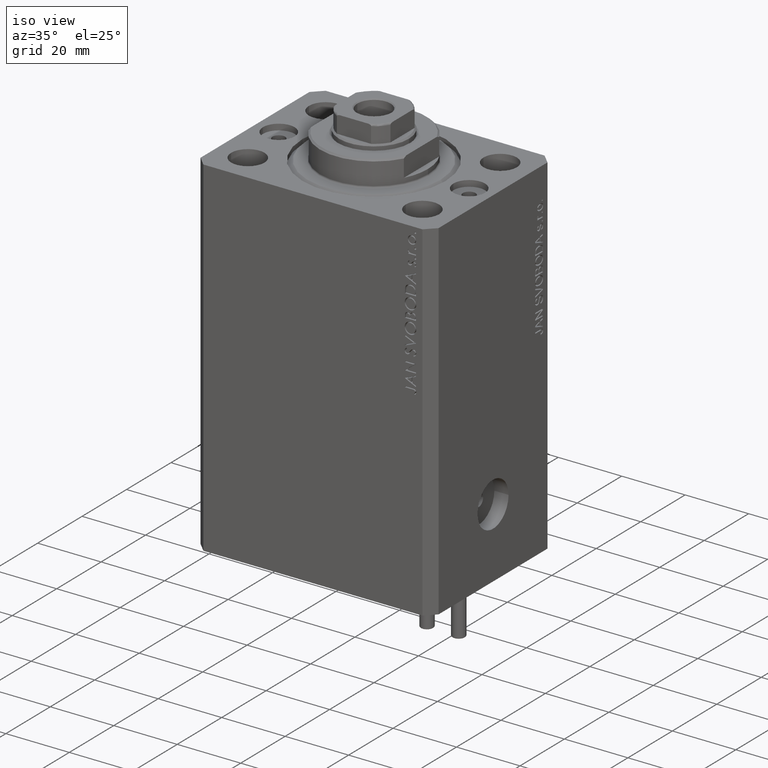
[diagram: clean part render]
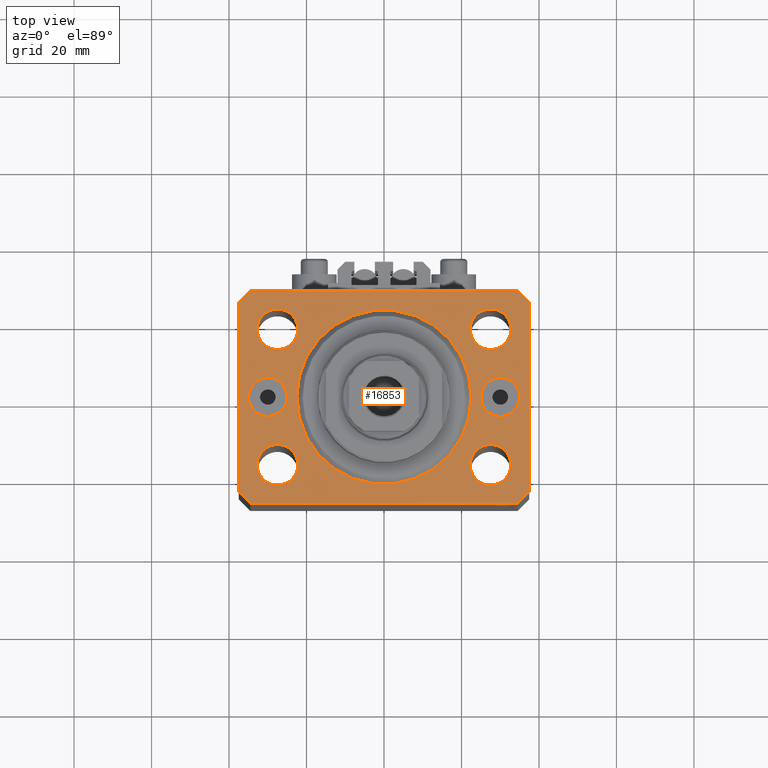
[diagram: tour spotlight — one face highlighted and labeled with its STEP entity id]
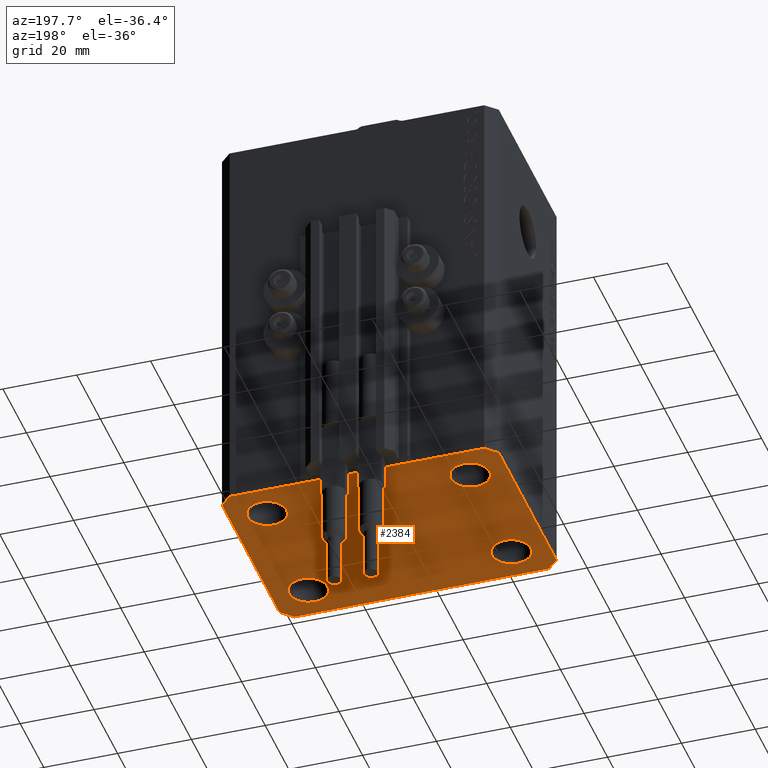
[diagram: tour spotlight — one face highlighted and labeled with its STEP entity id]
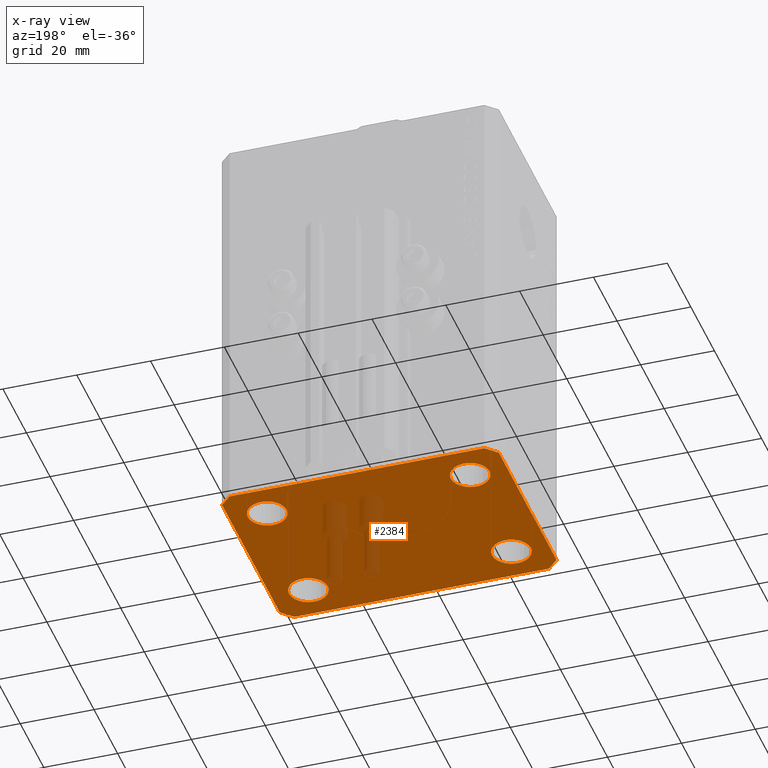
[diagram: x-ray of the same camera — body ghosted, this tour face saturated]
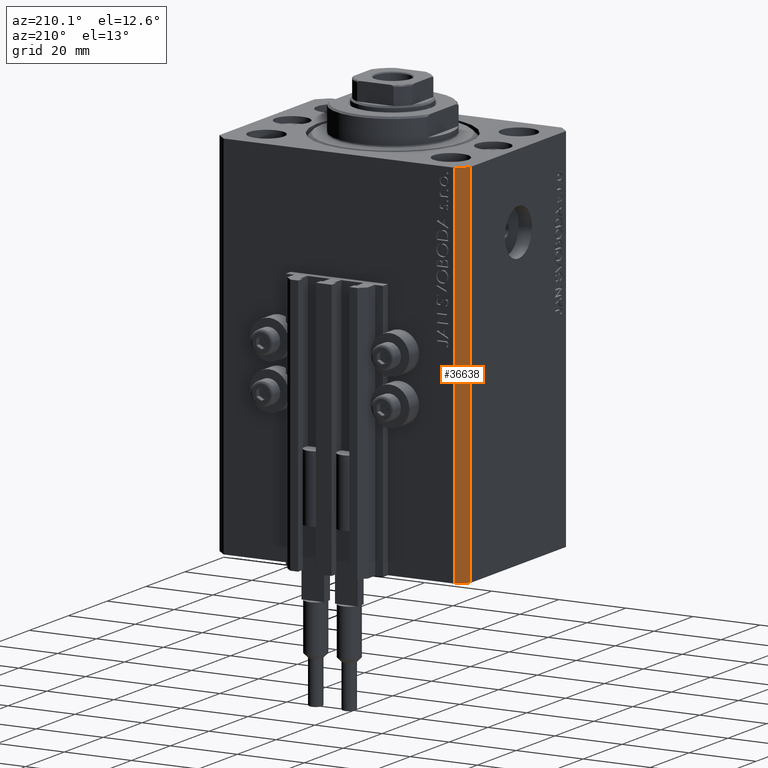
[diagram: tour spotlight — one face highlighted and labeled with its STEP entity id]
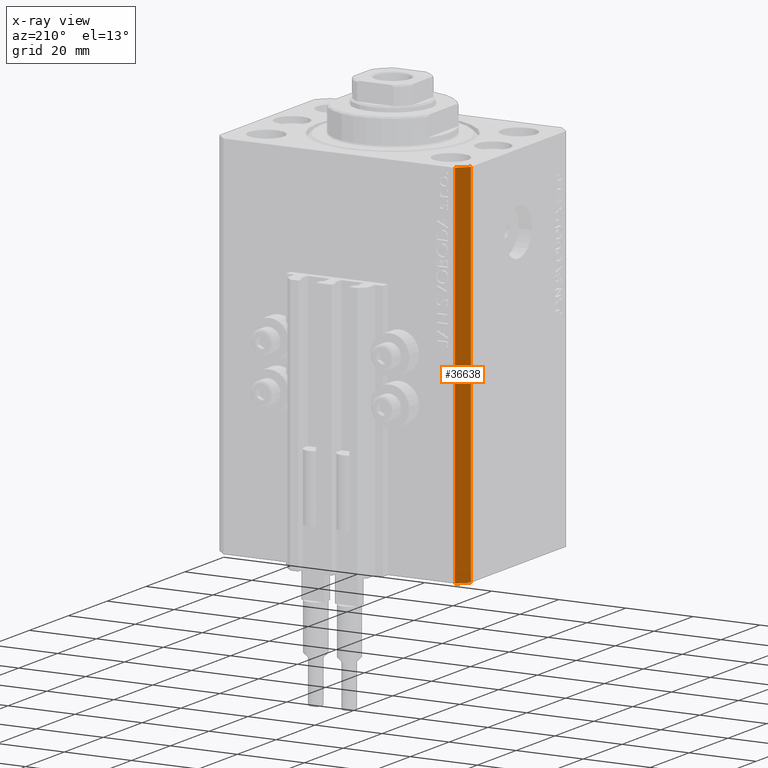
[diagram: x-ray of the same camera — body ghosted, this tour face saturated]
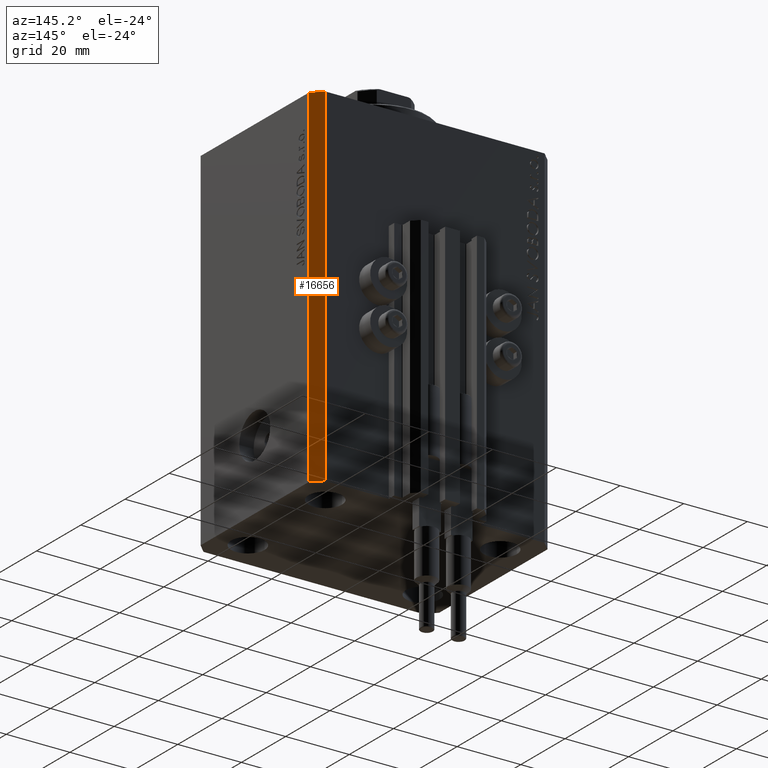
[diagram: tour spotlight — one face highlighted and labeled with its STEP entity id]
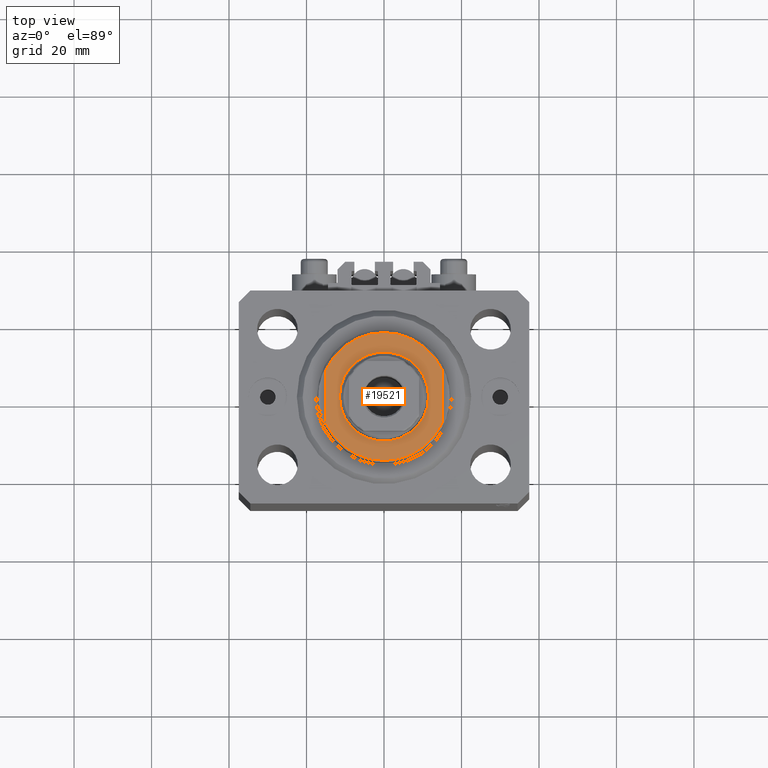
[diagram: tour spotlight — one face highlighted and labeled with its STEP entity id]
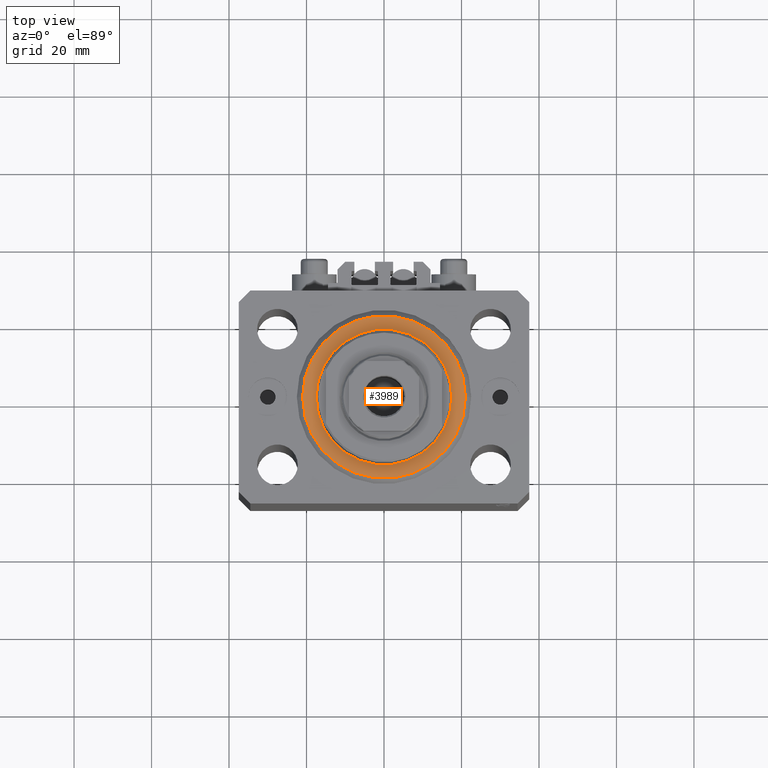
[diagram: tour spotlight — one face highlighted and labeled with its STEP entity id]
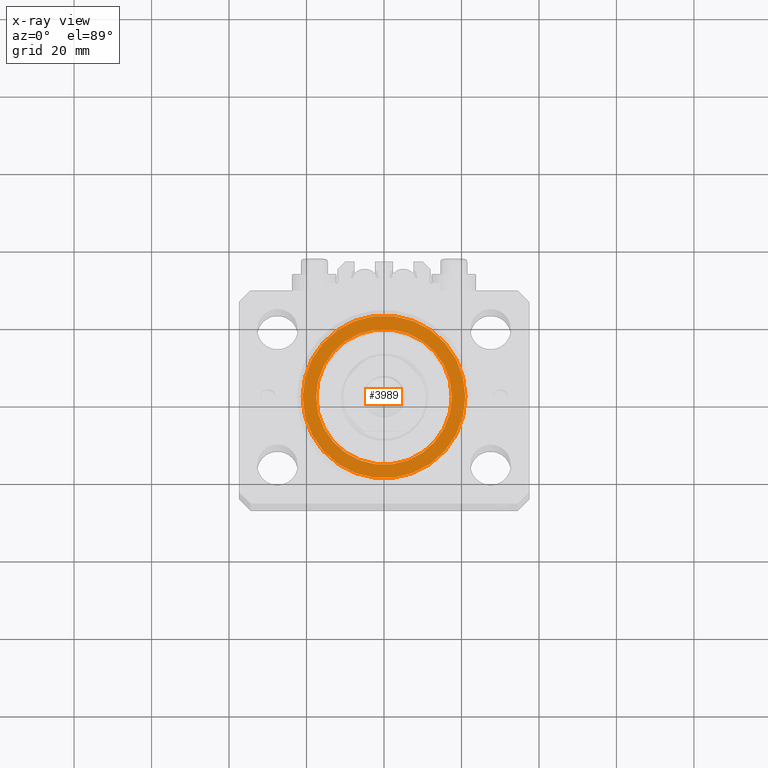
[diagram: x-ray of the same camera — body ghosted, this tour face saturated]
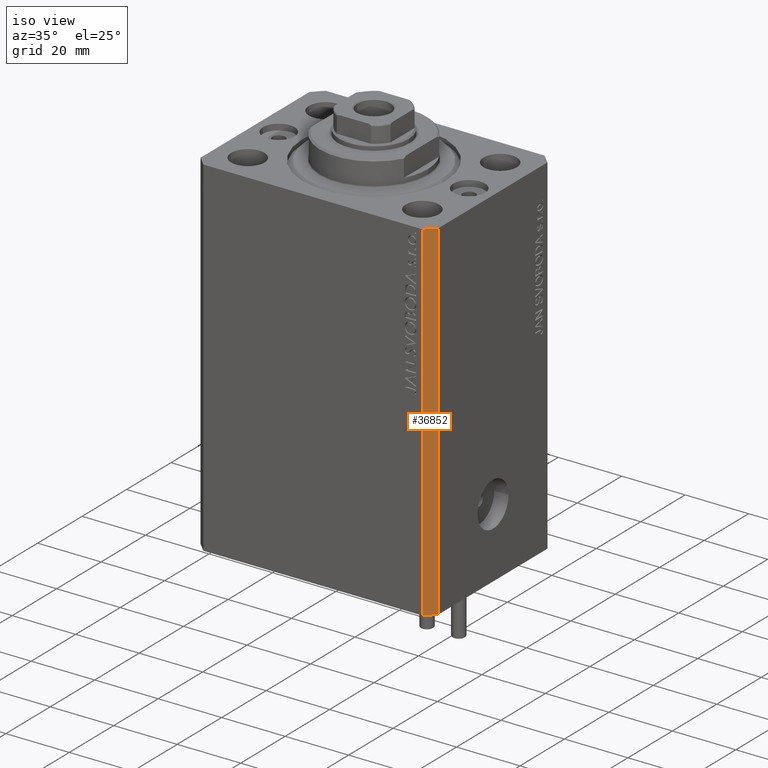
[diagram: tour spotlight — one face highlighted and labeled with its STEP entity id]
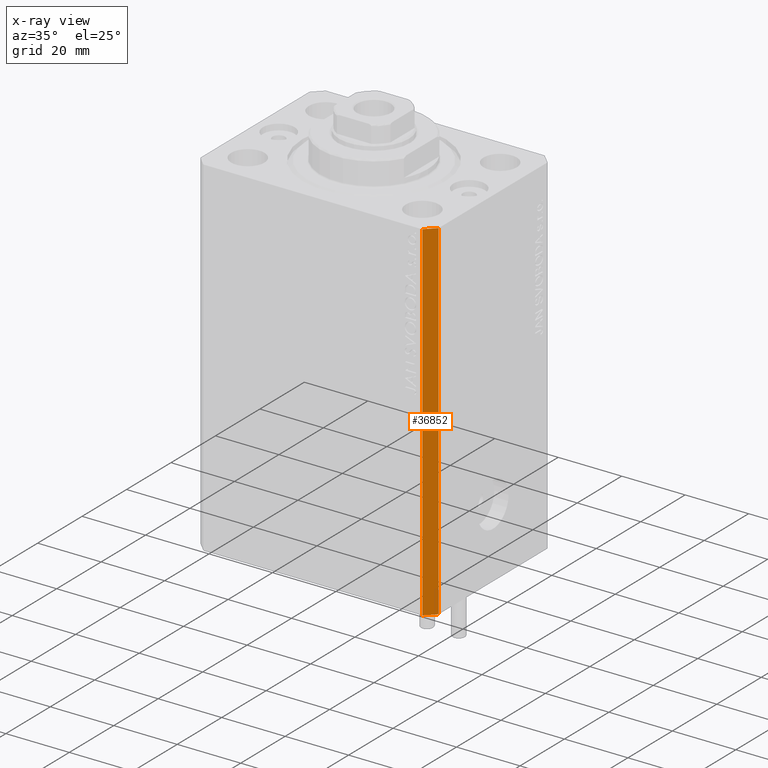
[diagram: x-ray of the same camera — body ghosted, this tour face saturated]
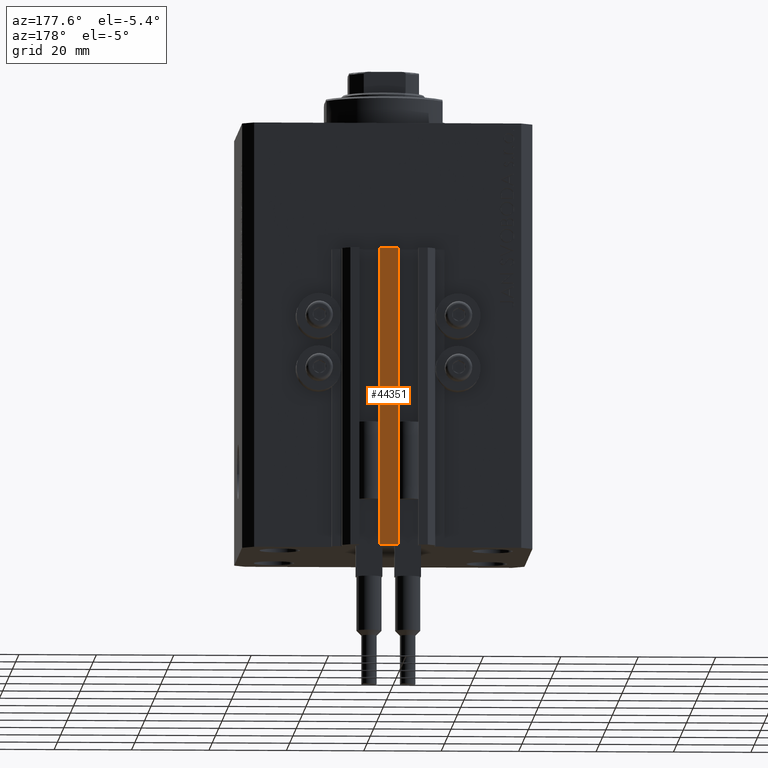
[diagram: tour spotlight — one face highlighted and labeled with its STEP entity id]
A machine part: a face-by-face anatomy tour. The part has 1086 B-rep faces; the first image is the clean iso view, then the 8 largest visible faces are spotlighted one at a time (largest first), each with its STEP entity span.

Face 1 — top view, entity #16853. In plain terms, the highlighted planar face has unit normal (0, 0, 1).
Definition (entity closure, byte-faithful):
#76 = ORIENTED_EDGE ( 'NONE', *, *, #33664, .F. ) ;
#264 = DIRECTION ( 'NONE',  ( 1.000000000000000000, 0.000000000000000000, 0.000000000000000000 ) ) ;
#388 = CIRCLE ( 'NONE', #23613, 4.999999999999997335 ) ;
#689 = CARTESIAN_POINT ( 'NONE',  ( -34.49999999999998579, -27.49999999999999645, 0.000000000000000000 ) ) ;
#713 = VERTEX_POINT ( 'NONE', #28373 ) ;
#946 = LINE ( 'NONE', #41523, #21333 ) ;
#1895 = ORIENTED_EDGE ( 'NONE', *, *, #6764, .T. ) ;
#2442 = EDGE_CURVE ( 'NONE', #27862, #30757, #22377, .T. ) ;
#2640 = ORIENTED_EDGE ( 'NONE', *, *, #14401, .F. ) ;
#2778 = ORIENTED_EDGE ( 'NONE', *, *, #31195, .F. ) ;
#3009 = FACE_BOUND ( 'NONE', #36165, .T. ) ;
#3060 = ORIENTED_EDGE ( 'NONE', *, *, #40487, .T. ) ;
#3322 = CARTESIAN_POINT ( 'NONE',  ( -37.49999999999999289, 24.50000000000000000, 0.000000000000000000 ) ) ;
#3692 = DIRECTION ( 'NONE',  ( 0.000000000000000000, 0.000000000000000000, 1.000000000000000000 ) ) ;
#3810 = CARTESIAN_POINT ( 'NONE',  ( 22.25000000000000000, 17.49999999999999289, 0.000000000000000000 ) ) ;
#4398 = CARTESIAN_POINT ( 'NONE',  ( 27.49999999999999289, -17.50000000000000000, 0.000000000000000000 ) ) ;
#4461 = EDGE_CURVE ( 'NONE', #30757, #27862, #44316, .T. ) ;
#4526 = EDGE_CURVE ( 'NONE', #33407, #7803, #43533, .T. ) ;
#4677 = CARTESIAN_POINT ( 'NONE',  ( -30.00000000000000000, 0.000000000000000000, 0.000000000000000000 ) ) ;
#4940 = CARTESIAN_POINT ( 'NONE',  ( -34.49999999999999289, 27.50000000000000000, 0.000000000000000000 ) ) ;
#5065 = ORIENTED_EDGE ( 'NONE', *, *, #14376, .T. ) ;
#5098 = LINE ( 'NONE', #42259, #26487 ) ;
#5328 = DIRECTION ( 'NONE',  ( -0.7071067811865364705, 0.7071067811865584529, 0.000000000000000000 ) ) ;
#5501 = CARTESIAN_POINT ( 'NONE',  ( -32.75000000000000000, 17.49999999999999645, 0.000000000000000000 ) ) ;
#5679 = CIRCLE ( 'NONE', #24275, 5.250000000000000888 ) ;
#6258 = EDGE_LOOP ( 'NONE', ( #76, #23099 ) ) ;
#6282 = AXIS2_PLACEMENT_3D ( 'NONE', #19047, #12260, #41877 ) ;
#6323 = EDGE_CURVE ( 'NONE', #15936, #7687, #37932, .T. ) ;
#6650 = FACE_BOUND ( 'NONE', #6258, .T. ) ;
#6764 = EDGE_CURVE ( 'NONE', #713, #41198, #5098, .T. ) ;
#7135 = FACE_BOUND ( 'NONE', #18099, .T. ) ;
#7162 = CARTESIAN_POINT ( 'NONE',  ( -27.49999999999999289, -17.50000000000000000, 0.000000000000000000 ) ) ;
#7292 = ORIENTED_EDGE ( 'NONE', *, *, #18149, .F. ) ;
#7334 = CARTESIAN_POINT ( 'NONE',  ( -24.99999999999999645, 0.000000000000000000, 0.000000000000000000 ) ) ;
#7376 = PLANE ( 'NONE',  #47857 ) ;
#7407 = VERTEX_POINT ( 'NONE', #18950 ) ;
#7571 = CIRCLE ( 'NONE', #34686, 4.999999999999997335 ) ;
#7687 = VERTEX_POINT ( 'NONE', #689 ) ;
#7803 = VERTEX_POINT ( 'NONE', #46077 ) ;
#8189 = AXIS2_PLACEMENT_3D ( 'NONE', #30100, #44941, #20095 ) ;
#8235 = CARTESIAN_POINT ( 'NONE',  ( 0.000000000000000000, 0.000000000000000000, 0.000000000000000000 ) ) ;
#8307 = ORIENTED_EDGE ( 'NONE', *, *, #4526, .F. ) ;
#8416 = VERTEX_POINT ( 'NONE', #44914 ) ;
#8877 = VERTEX_POINT ( 'NONE', #3810 ) ;
#9136 = DIRECTION ( 'NONE',  ( 1.000000000000000000, 0.000000000000000000, 0.000000000000000000 ) ) ;
#9391 = DIRECTION ( 'NONE',  ( 0.000000000000000000, 0.000000000000000000, 1.000000000000000000 ) ) ;
#9645 = ORIENTED_EDGE ( 'NONE', *, *, #30000, .T. ) ;
#9868 = EDGE_CURVE ( 'NONE', #15249, #7407, #39043, .T. ) ;
#10096 = CARTESIAN_POINT ( 'NONE',  ( 34.49999999999999289, -27.49999999999999645, 0.000000000000000000 ) ) ;
#10170 = CIRCLE ( 'NONE', #37307, 5.000000000000000888 ) ;
#10409 = CARTESIAN_POINT ( 'NONE',  ( 34.49999999999999289, -27.49999999999999645, 0.000000000000000000 ) ) ;
#10817 = CARTESIAN_POINT ( 'NONE',  ( -22.25000000000000000, 17.49999999999999645, 0.000000000000000000 ) ) ;
#11064 = EDGE_CURVE ( 'NONE', #19434, #713, #24807, .T. ) ;
#11667 = CARTESIAN_POINT ( 'NONE',  ( -22.24999999999999289, -17.50000000000000000, 0.000000000000000000 ) ) ;
#12260 = DIRECTION ( 'NONE',  ( 0.000000000000000000, 0.000000000000000000, 1.000000000000000000 ) ) ;
#13509 = DIRECTION ( 'NONE',  ( 0.000000000000000000, 0.000000000000000000, 1.000000000000000000 ) ) ;
#13717 = CARTESIAN_POINT ( 'NONE',  ( 30.00000000000000000, 0.000000000000000000, 0.000000000000000000 ) ) ;
#13839 = EDGE_LOOP ( 'NONE', ( #2640, #32826 ) ) ;
#13849 = CARTESIAN_POINT ( 'NONE',  ( 37.49999999999999289, -24.50000000000000000, 0.000000000000000000 ) ) ;
#14295 = DIRECTION ( 'NONE',  ( 1.000000000000000000, 0.000000000000000000, 0.000000000000000000 ) ) ;
#14376 = EDGE_CURVE ( 'NONE', #46586, #15936, #946, .T. ) ;
#14401 = EDGE_CURVE ( 'NONE', #35529, #39481, #37649, .T. ) ;
#14805 = LINE ( 'NONE', #45148, #42304 ) ;
#15249 = VERTEX_POINT ( 'NONE', #11667 ) ;
#15526 = ORIENTED_EDGE ( 'NONE', *, *, #9868, .F. ) ;
#15762 = DIRECTION ( 'NONE',  ( 0.000000000000000000, -1.000000000000000000, 0.000000000000000000 ) ) ;
#15887 = ORIENTED_EDGE ( 'NONE', *, *, #11064, .T. ) ;
#15904 = CARTESIAN_POINT ( 'NONE',  ( -34.99999999999999289, 6.123233995736768255E-16, 0.000000000000000000 ) ) ;
#15936 = VERTEX_POINT ( 'NONE', #23632 ) ;
#16367 = FACE_OUTER_BOUND ( 'NONE', #30552, .T. ) ;
#16546 = DIRECTION ( 'NONE',  ( 1.000000000000000000, 0.000000000000000000, 0.000000000000000000 ) ) ;
#16761 = ORIENTED_EDGE ( 'NONE', *, *, #6323, .T. ) ;
#16853 = ADVANCED_FACE ( 'NONE', ( #16367, #43329, #6650, #28493, #40647, #7135, #46964, #3009 ), #7376, .T. ) ;
#17294 = AXIS2_PLACEMENT_3D ( 'NONE', #7162, #39696, #43853 ) ;
#17380 = CARTESIAN_POINT ( 'NONE',  ( 27.50000000000000000, 17.49999999999999289, 0.000000000000000000 ) ) ;
#17632 = ORIENTED_EDGE ( 'NONE', *, *, #4461, .F. ) ;
#17931 = VECTOR ( 'NONE', #28844, 1000.000000000000114 ) ;
#18021 = AXIS2_PLACEMENT_3D ( 'NONE', #8235, #20312, #34193 ) ;
#18082 = ORIENTED_EDGE ( 'NONE', *, *, #47538, .T. ) ;
#18099 = EDGE_LOOP ( 'NONE', ( #2778, #8307 ) ) ;
#18149 = EDGE_CURVE ( 'NONE', #20576, #19166, #22053, .T. ) ;
#18394 = DIRECTION ( 'NONE',  ( 0.000000000000000000, 0.000000000000000000, 1.000000000000000000 ) ) ;
#18926 = EDGE_LOOP ( 'NONE', ( #17632, #39416 ) ) ;
#18950 = CARTESIAN_POINT ( 'NONE',  ( -32.74999999999999289, -17.50000000000000000, 0.000000000000000000 ) ) ;
#19047 = CARTESIAN_POINT ( 'NONE',  ( 0.000000000000000000, 0.000000000000000000, 0.000000000000000000 ) ) ;
#19166 = VERTEX_POINT ( 'NONE', #7334 ) ;
#19434 = VERTEX_POINT ( 'NONE', #13849 ) ;
#19463 = DIRECTION ( 'NONE',  ( 0.000000000000000000, 0.000000000000000000, 1.000000000000000000 ) ) ;
#19683 = ORIENTED_EDGE ( 'NONE', *, *, #22805, .F. ) ;
#20095 = DIRECTION ( 'NONE',  ( 1.000000000000000000, 0.000000000000000000, 0.000000000000000000 ) ) ;
#20312 = DIRECTION ( 'NONE',  ( 0.000000000000000000, 0.000000000000000000, 1.000000000000000000 ) ) ;
#20576 = VERTEX_POINT ( 'NONE', #15904 ) ;
#21333 = VECTOR ( 'NONE', #15762, 1000.000000000000000 ) ;
#21655 = DIRECTION ( 'NONE',  ( 1.076236605503979380E-14, 1.000000000000000000, 0.000000000000000000 ) ) ;
#21679 = DIRECTION ( 'NONE',  ( 0.000000000000000000, 0.000000000000000000, 1.000000000000000000 ) ) ;
#21901 = AXIS2_PLACEMENT_3D ( 'NONE', #17380, #32192, #47025 ) ;
#22053 = CIRCLE ( 'NONE', #41442, 5.000000000000000888 ) ;
#22169 = DIRECTION ( 'NONE',  ( 1.000000000000000000, 0.000000000000000000, -0.000000000000000000 ) ) ;
#22377 = CIRCLE ( 'NONE', #38640, 5.250000000000000888 ) ;
#22805 = EDGE_CURVE ( 'NONE', #19166, #20576, #10170, .T. ) ;
#23099 = ORIENTED_EDGE ( 'NONE', *, *, #27097, .F. ) ;
#23341 = CARTESIAN_POINT ( 'NONE',  ( -37.49999999999999289, -24.50000000000000000, 0.000000000000000000 ) ) ;
#23489 = CARTESIAN_POINT ( 'NONE',  ( -34.49999999999999289, 27.50000000000000000, 0.000000000000000000 ) ) ;
#23608 = EDGE_CURVE ( 'NONE', #23843, #19434, #48038, .T. ) ;
#23613 = AXIS2_PLACEMENT_3D ( 'NONE', #23657, #45558, #34835 ) ;
#23632 = CARTESIAN_POINT ( 'NONE',  ( -37.49999999999999289, -24.50000000000000000, 0.000000000000000000 ) ) ;
#23657 = CARTESIAN_POINT ( 'NONE',  ( 30.00000000000000000, 0.000000000000000000, 0.000000000000000000 ) ) ;
#23843 = VERTEX_POINT ( 'NONE', #10096 ) ;
#23855 = EDGE_LOOP ( 'NONE', ( #19683, #7292 ) ) ;
#24275 = AXIS2_PLACEMENT_3D ( 'NONE', #35182, #24723, #46843 ) ;
#24674 = DIRECTION ( 'NONE',  ( 1.000000000000000000, 0.000000000000000000, 0.000000000000000000 ) ) ;
#24723 = DIRECTION ( 'NONE',  ( 0.000000000000000000, 0.000000000000000000, 1.000000000000000000 ) ) ;
#24807 = LINE ( 'NONE', #36000, #35955 ) ;
#25428 = DIRECTION ( 'NONE',  ( 1.000000000000000000, 0.000000000000000000, 0.000000000000000000 ) ) ;
#26419 = DIRECTION ( 'NONE',  ( -1.000000000000000000, 0.000000000000000000, 0.000000000000000000 ) ) ;
#26487 = VECTOR ( 'NONE', #5328, 1000.000000000000114 ) ;
#27097 = EDGE_CURVE ( 'NONE', #8877, #46097, #36658, .T. ) ;
#27224 = DIRECTION ( 'NONE',  ( 0.7071067811865483499, -0.7071067811865466846, 0.000000000000000000 ) ) ;
#27612 = LINE ( 'NONE', #23489, #39730 ) ;
#27647 = EDGE_CURVE ( 'NONE', #39481, #35529, #5679, .T. ) ;
#27862 = VERTEX_POINT ( 'NONE', #42634 ) ;
#28353 = LINE ( 'NONE', #43187, #42122 ) ;
#28373 = CARTESIAN_POINT ( 'NONE',  ( 37.50000000000051870, 24.49999999999995381, 0.000000000000000000 ) ) ;
#28493 = FACE_BOUND ( 'NONE', #18926, .T. ) ;
#28503 = DIRECTION ( 'NONE',  ( 0.000000000000000000, -0.000000000000000000, -1.000000000000000000 ) ) ;
#28844 = DIRECTION ( 'NONE',  ( 0.7071067811865474617, 0.7071067811865474617, 0.000000000000000000 ) ) ;
#29017 = CIRCLE ( 'NONE', #42965, 5.250000000000000888 ) ;
#29064 = CARTESIAN_POINT ( 'NONE',  ( 34.99999999999999289, 0.000000000000000000, 0.000000000000000000 ) ) ;
#30000 = EDGE_CURVE ( 'NONE', #31940, #46586, #27612, .T. ) ;
#30100 = CARTESIAN_POINT ( 'NONE',  ( -27.50000000000000000, 17.49999999999999645, 0.000000000000000000 ) ) ;
#30551 = VERTEX_POINT ( 'NONE', #29064 ) ;
#30552 = EDGE_LOOP ( 'NONE', ( #34346, #9645, #5065, #16761, #32890, #31922, #15887, #1895 ) ) ;
#30757 = VERTEX_POINT ( 'NONE', #44499 ) ;
#31195 = EDGE_CURVE ( 'NONE', #7803, #33407, #32760, .T. ) ;
#31265 = DIRECTION ( 'NONE',  ( -0.7071067811865471286, -0.7071067811865479058, 0.000000000000000000 ) ) ;
#31513 = EDGE_LOOP ( 'NONE', ( #15526, #36991 ) ) ;
#31922 = ORIENTED_EDGE ( 'NONE', *, *, #23608, .T. ) ;
#31940 = VERTEX_POINT ( 'NONE', #4940 ) ;
#32145 = DIRECTION ( 'NONE',  ( 1.000000000000000000, 0.000000000000000000, 0.000000000000000000 ) ) ;
#32192 = DIRECTION ( 'NONE',  ( 0.000000000000000000, 0.000000000000000000, 1.000000000000000000 ) ) ;
#32396 = EDGE_CURVE ( 'NONE', #7687, #23843, #28353, .T. ) ;
#32760 = CIRCLE ( 'NONE', #18021, 22.50000000000000355 ) ;
#32826 = ORIENTED_EDGE ( 'NONE', *, *, #27647, .F. ) ;
#32858 = CARTESIAN_POINT ( 'NONE',  ( 0.000000000000000000, 0.000000000000000000, 0.000000000000000000 ) ) ;
#32890 = ORIENTED_EDGE ( 'NONE', *, *, #32396, .T. ) ;
#33407 = VERTEX_POINT ( 'NONE', #33498 ) ;
#33498 = CARTESIAN_POINT ( 'NONE',  ( -22.50000000000000355, 2.755455298081545172E-15, 0.000000000000000000 ) ) ;
#33664 = EDGE_CURVE ( 'NONE', #46097, #8877, #29017, .T. ) ;
#34193 = DIRECTION ( 'NONE',  ( 1.000000000000000000, 0.000000000000000000, 0.000000000000000000 ) ) ;
#34346 = ORIENTED_EDGE ( 'NONE', *, *, #41665, .T. ) ;
#34686 = AXIS2_PLACEMENT_3D ( 'NONE', #13717, #28503, #32145 ) ;
#34835 = DIRECTION ( 'NONE',  ( 1.000000000000000000, 0.000000000000000000, 0.000000000000000000 ) ) ;
#34938 = AXIS2_PLACEMENT_3D ( 'NONE', #42892, #13509, #9136 ) ;
#35182 = CARTESIAN_POINT ( 'NONE',  ( -27.50000000000000000, 17.49999999999999645, 0.000000000000000000 ) ) ;
#35239 = CIRCLE ( 'NONE', #45358, 5.250000000000000888 ) ;
#35529 = VERTEX_POINT ( 'NONE', #10817 ) ;
#35955 = VECTOR ( 'NONE', #21655, 1000.000000000000000 ) ;
#36000 = CARTESIAN_POINT ( 'NONE',  ( 37.49999999999999289, -24.50000000000000000, 0.000000000000000000 ) ) ;
#36165 = EDGE_LOOP ( 'NONE', ( #3060, #18082 ) ) ;
#36270 = DIRECTION ( 'NONE',  ( 0.000000000000000000, 0.000000000000000000, 1.000000000000000000 ) ) ;
#36658 = CIRCLE ( 'NONE', #21901, 5.250000000000000888 ) ;
#36857 = CARTESIAN_POINT ( 'NONE',  ( -30.00000000000000000, 0.000000000000000000, 0.000000000000000000 ) ) ;
#36991 = ORIENTED_EDGE ( 'NONE', *, *, #40349, .F. ) ;
#37307 = AXIS2_PLACEMENT_3D ( 'NONE', #36857, #18394, #14295 ) ;
#37649 = CIRCLE ( 'NONE', #8189, 5.250000000000000888 ) ;
#37932 = LINE ( 'NONE', #23341, #45136 ) ;
#38640 = AXIS2_PLACEMENT_3D ( 'NONE', #4398, #3692, #264 ) ;
#39043 = CIRCLE ( 'NONE', #17294, 5.250000000000000888 ) ;
#39416 = ORIENTED_EDGE ( 'NONE', *, *, #2442, .F. ) ;
#39481 = VERTEX_POINT ( 'NONE', #5501 ) ;
#39669 = DIRECTION ( 'NONE',  ( 1.000000000000000000, 0.000000000000000000, 0.000000000000000000 ) ) ;
#39696 = DIRECTION ( 'NONE',  ( 0.000000000000000000, 0.000000000000000000, 1.000000000000000000 ) ) ;
#39730 = VECTOR ( 'NONE', #31265, 1000.000000000000000 ) ;
#40349 = EDGE_CURVE ( 'NONE', #7407, #15249, #35239, .T. ) ;
#40487 = EDGE_CURVE ( 'NONE', #30551, #8416, #388, .T. ) ;
#40647 = FACE_BOUND ( 'NONE', #31513, .T. ) ;
#40648 = CARTESIAN_POINT ( 'NONE',  ( 27.50000000000000000, 17.49999999999999289, 0.000000000000000000 ) ) ;
#41198 = VERTEX_POINT ( 'NONE', #43231 ) ;
#41442 = AXIS2_PLACEMENT_3D ( 'NONE', #4677, #19463, #16546 ) ;
#41523 = CARTESIAN_POINT ( 'NONE',  ( -37.49999999999999289, 24.50000000000000000, 0.000000000000000000 ) ) ;
#41665 = EDGE_CURVE ( 'NONE', #41198, #31940, #14805, .T. ) ;
#41877 = DIRECTION ( 'NONE',  ( 1.000000000000000000, 0.000000000000000000, 0.000000000000000000 ) ) ;
#42122 = VECTOR ( 'NONE', #25428, 1000.000000000000000 ) ;
#42259 = CARTESIAN_POINT ( 'NONE',  ( 37.50000000000051870, 24.49999999999995381, 0.000000000000000000 ) ) ;
#42304 = VECTOR ( 'NONE', #26419, 1000.000000000000000 ) ;
#42551 = CARTESIAN_POINT ( 'NONE',  ( 32.75000000000000000, 17.49999999999999289, 0.000000000000000000 ) ) ;
#42634 = CARTESIAN_POINT ( 'NONE',  ( 22.24999999999999289, -17.50000000000000000, 0.000000000000000000 ) ) ;
#42892 = CARTESIAN_POINT ( 'NONE',  ( 27.49999999999999289, -17.50000000000000000, 0.000000000000000000 ) ) ;
#42965 = AXIS2_PLACEMENT_3D ( 'NONE', #40648, #21679, #39669 ) ;
#43164 = CARTESIAN_POINT ( 'NONE',  ( -27.49999999999999289, -17.50000000000000000, 0.000000000000000000 ) ) ;
#43187 = CARTESIAN_POINT ( 'NONE',  ( -34.49999999999998579, -27.49999999999999645, 0.000000000000000000 ) ) ;
#43231 = CARTESIAN_POINT ( 'NONE',  ( 34.50000000000056843, 27.50000000000000000, 0.000000000000000000 ) ) ;
#43329 = FACE_BOUND ( 'NONE', #13839, .T. ) ;
#43533 = CIRCLE ( 'NONE', #6282, 22.50000000000000355 ) ;
#43853 = DIRECTION ( 'NONE',  ( 1.000000000000000000, 0.000000000000000000, 0.000000000000000000 ) ) ;
#44316 = CIRCLE ( 'NONE', #34938, 5.250000000000000888 ) ;
#44499 = CARTESIAN_POINT ( 'NONE',  ( 32.74999999999999289, -17.50000000000000000, 0.000000000000000000 ) ) ;
#44914 = CARTESIAN_POINT ( 'NONE',  ( 25.00000000000000000, 6.123233995736762338E-16, 0.000000000000000000 ) ) ;
#44941 = DIRECTION ( 'NONE',  ( 0.000000000000000000, 0.000000000000000000, 1.000000000000000000 ) ) ;
#45136 = VECTOR ( 'NONE', #27224, 1000.000000000000000 ) ;
#45148 = CARTESIAN_POINT ( 'NONE',  ( 34.50000000000056843, 27.50000000000000000, 0.000000000000000000 ) ) ;
#45358 = AXIS2_PLACEMENT_3D ( 'NONE', #43164, #9391, #24674 ) ;
#45558 = DIRECTION ( 'NONE',  ( 0.000000000000000000, -0.000000000000000000, -1.000000000000000000 ) ) ;
#46077 = CARTESIAN_POINT ( 'NONE',  ( 22.50000000000000355, 0.000000000000000000, 0.000000000000000000 ) ) ;
#46097 = VERTEX_POINT ( 'NONE', #42551 ) ;
#46586 = VERTEX_POINT ( 'NONE', #3322 ) ;
#46843 = DIRECTION ( 'NONE',  ( 1.000000000000000000, 0.000000000000000000, 0.000000000000000000 ) ) ;
#46964 = FACE_BOUND ( 'NONE', #23855, .T. ) ;
#47025 = DIRECTION ( 'NONE',  ( 1.000000000000000000, 0.000000000000000000, 0.000000000000000000 ) ) ;
#47538 = EDGE_CURVE ( 'NONE', #8416, #30551, #7571, .T. ) ;
#47857 = AXIS2_PLACEMENT_3D ( 'NONE', #32858, #36270, #22169 ) ;
#48038 = LINE ( 'NONE', #10409, #17931 ) ;

Face 2 — auxiliary view, entity #2384. An x-ray twin of the same camera follows (body ghosted, this face saturated) — the face is partly hidden behind the body. In plain terms, the highlighted planar face has unit normal (0, 0, 1).
Definition (entity closure, byte-faithful):
#439 = VERTEX_POINT ( 'NONE', #36807 ) ;
#721 = DIRECTION ( 'NONE',  ( 1.000000000000000000, 0.000000000000000000, 0.000000000000000000 ) ) ;
#854 = LINE ( 'NONE', #19300, #5233 ) ;
#955 = EDGE_CURVE ( 'NONE', #47286, #35989, #32922, .T. ) ;
#1132 = CARTESIAN_POINT ( 'NONE',  ( -34.49999999999999289, 27.50000000000000000, -110.0000000000000000 ) ) ;
#1213 = VECTOR ( 'NONE', #4755, 1000.000000000000000 ) ;
#2384 = ADVANCED_FACE ( 'NONE', ( #17264, #43278, #27947, #42789, #35969 ), #14140, .F. ) ;
#2667 = LINE ( 'NONE', #7035, #39911 ) ;
#3333 = EDGE_LOOP ( 'NONE', ( #17353, #41919 ) ) ;
#4755 = DIRECTION ( 'NONE',  ( 1.076236605503979380E-14, 1.000000000000000000, 0.000000000000000000 ) ) ;
#4787 = EDGE_CURVE ( 'NONE', #15981, #47286, #40396, .T. ) ;
#4992 = AXIS2_PLACEMENT_3D ( 'NONE', #44258, #36709, #18491 ) ;
#5203 = CARTESIAN_POINT ( 'NONE',  ( -34.49999999999998579, -27.49999999999999645, -110.0000000000000000 ) ) ;
#5233 = VECTOR ( 'NONE', #41186, 1000.000000000000000 ) ;
#5853 = VERTEX_POINT ( 'NONE', #16016 ) ;
#7035 = CARTESIAN_POINT ( 'NONE',  ( -37.49999999999999289, -24.50000000000000000, -110.0000000000000000 ) ) ;
#7198 = CIRCLE ( 'NONE', #31979, 5.250000000000000888 ) ;
#7795 = ORIENTED_EDGE ( 'NONE', *, *, #25844, .F. ) ;
#8699 = CIRCLE ( 'NONE', #35836, 5.250000000000000888 ) ;
#9506 = DIRECTION ( 'NONE',  ( 1.000000000000000000, 0.000000000000000000, -0.000000000000000000 ) ) ;
#9584 = CARTESIAN_POINT ( 'NONE',  ( 27.50000000000000000, 17.49999999999999289, -110.0000000000000000 ) ) ;
#9758 = CARTESIAN_POINT ( 'NONE',  ( 22.25000000000000000, 17.49999999999999289, -110.0000000000000000 ) ) ;
#10197 = CARTESIAN_POINT ( 'NONE',  ( -27.49999999999999289, -17.50000000000000000, -110.0000000000000000 ) ) ;
#10507 = VERTEX_POINT ( 'NONE', #33197 ) ;
#10688 = DIRECTION ( 'NONE',  ( -1.000000000000000000, 0.000000000000000000, 0.000000000000000000 ) ) ;
#11539 = EDGE_CURVE ( 'NONE', #10507, #47033, #13476, .T. ) ;
#11961 = DIRECTION ( 'NONE',  ( -0.000000000000000000, -0.000000000000000000, -1.000000000000000000 ) ) ;
#12700 = AXIS2_PLACEMENT_3D ( 'NONE', #37445, #11961, #45471 ) ;
#13476 = CIRCLE ( 'NONE', #40626, 5.250000000000000888 ) ;
#13863 = EDGE_CURVE ( 'NONE', #28933, #26349, #15409, .T. ) ;
#14084 = ORIENTED_EDGE ( 'NONE', *, *, #33200, .F. ) ;
#14140 = PLANE ( 'NONE',  #46411 ) ;
#14481 = CARTESIAN_POINT ( 'NONE',  ( -32.74999999999999289, -17.50000000000000000, -110.0000000000000000 ) ) ;
#14970 = CARTESIAN_POINT ( 'NONE',  ( 34.49999999999999289, -27.49999999999999645, -110.0000000000000000 ) ) ;
#15155 = VECTOR ( 'NONE', #30202, 1000.000000000000114 ) ;
#15230 = EDGE_LOOP ( 'NONE', ( #42357, #14084 ) ) ;
#15409 = LINE ( 'NONE', #42104, #15155 ) ;
#15764 = DIRECTION ( 'NONE',  ( -0.000000000000000000, -0.000000000000000000, -1.000000000000000000 ) ) ;
#15981 = VERTEX_POINT ( 'NONE', #5203 ) ;
#16016 = CARTESIAN_POINT ( 'NONE',  ( -22.24999999999999289, -17.50000000000000000, -110.0000000000000000 ) ) ;
#16152 = DIRECTION ( 'NONE',  ( 1.000000000000000000, 0.000000000000000000, 0.000000000000000000 ) ) ;
#16278 = CARTESIAN_POINT ( 'NONE',  ( 37.49999999999999289, -24.50000000000000000, -110.0000000000000000 ) ) ;
#17101 = DIRECTION ( 'NONE',  ( -0.000000000000000000, -0.000000000000000000, -1.000000000000000000 ) ) ;
#17264 = FACE_BOUND ( 'NONE', #40674, .T. ) ;
#17353 = ORIENTED_EDGE ( 'NONE', *, *, #11539, .F. ) ;
#17720 = ORIENTED_EDGE ( 'NONE', *, *, #46644, .F. ) ;
#17946 = LINE ( 'NONE', #25224, #23526 ) ;
#17954 = DIRECTION ( 'NONE',  ( -0.000000000000000000, -0.000000000000000000, -1.000000000000000000 ) ) ;
#18012 = CARTESIAN_POINT ( 'NONE',  ( -27.50000000000000000, 17.49999999999999645, -110.0000000000000000 ) ) ;
#18200 = ORIENTED_EDGE ( 'NONE', *, *, #13863, .F. ) ;
#18491 = DIRECTION ( 'NONE',  ( 1.000000000000000000, 0.000000000000000000, 0.000000000000000000 ) ) ;
#18768 = CARTESIAN_POINT ( 'NONE',  ( -37.49999999999999289, 24.50000000000000000, -110.0000000000000000 ) ) ;
#18860 = VERTEX_POINT ( 'NONE', #45024 ) ;
#19046 = ORIENTED_EDGE ( 'NONE', *, *, #955, .F. ) ;
#19300 = CARTESIAN_POINT ( 'NONE',  ( -37.49999999999999289, 24.50000000000000000, -110.0000000000000000 ) ) ;
#19394 = CARTESIAN_POINT ( 'NONE',  ( -27.49999999999999289, -17.50000000000000000, -110.0000000000000000 ) ) ;
#20134 = ORIENTED_EDGE ( 'NONE', *, *, #46629, .F. ) ;
#20448 = EDGE_LOOP ( 'NONE', ( #44934, #18200, #39761, #19046, #22470, #36575, #20134, #24490 ) ) ;
#21390 = CARTESIAN_POINT ( 'NONE',  ( 0.000000000000000000, 0.000000000000000000, -110.0000000000000000 ) ) ;
#21758 = EDGE_CURVE ( 'NONE', #24169, #18860, #26023, .T. ) ;
#21911 = CARTESIAN_POINT ( 'NONE',  ( 32.74999999999999289, -17.50000000000000000, -110.0000000000000000 ) ) ;
#22079 = EDGE_CURVE ( 'NONE', #439, #15981, #2667, .T. ) ;
#22238 = CARTESIAN_POINT ( 'NONE',  ( -22.25000000000000000, 17.49999999999999645, -110.0000000000000000 ) ) ;
#22267 = ORIENTED_EDGE ( 'NONE', *, *, #30670, .F. ) ;
#22470 = ORIENTED_EDGE ( 'NONE', *, *, #4787, .F. ) ;
#23526 = VECTOR ( 'NONE', #10688, 1000.000000000000000 ) ;
#23546 = ORIENTED_EDGE ( 'NONE', *, *, #29775, .F. ) ;
#23678 = VERTEX_POINT ( 'NONE', #1132 ) ;
#24018 = DIRECTION ( 'NONE',  ( -0.000000000000000000, -0.000000000000000000, -1.000000000000000000 ) ) ;
#24169 = VERTEX_POINT ( 'NONE', #21911 ) ;
#24490 = ORIENTED_EDGE ( 'NONE', *, *, #45212, .F. ) ;
#24819 = CARTESIAN_POINT ( 'NONE',  ( -34.49999999999998579, -27.49999999999999645, -110.0000000000000000 ) ) ;
#25224 = CARTESIAN_POINT ( 'NONE',  ( 34.50000000000056843, 27.50000000000000000, -110.0000000000000000 ) ) ;
#25844 = EDGE_CURVE ( 'NONE', #5853, #26068, #28882, .T. ) ;
#26023 = CIRCLE ( 'NONE', #4992, 5.250000000000000888 ) ;
#26068 = VERTEX_POINT ( 'NONE', #14481 ) ;
#26084 = VECTOR ( 'NONE', #45424, 1000.000000000000000 ) ;
#26197 = VECTOR ( 'NONE', #35835, 1000.000000000000114 ) ;
#26349 = VERTEX_POINT ( 'NONE', #29922 ) ;
#27947 = FACE_BOUND ( 'NONE', #3333, .T. ) ;
#28161 = CIRCLE ( 'NONE', #12700, 5.250000000000000888 ) ;
#28698 = DIRECTION ( 'NONE',  ( -0.000000000000000000, -0.000000000000000000, -1.000000000000000000 ) ) ;
#28783 = VECTOR ( 'NONE', #39651, 1000.000000000000000 ) ;
#28882 = CIRCLE ( 'NONE', #37408, 5.250000000000000888 ) ;
#28892 = EDGE_CURVE ( 'NONE', #26349, #23678, #17946, .T. ) ;
#28933 = VERTEX_POINT ( 'NONE', #36650 ) ;
#29671 = AXIS2_PLACEMENT_3D ( 'NONE', #42036, #24018, #37907 ) ;
#29775 = EDGE_CURVE ( 'NONE', #26068, #5853, #8699, .T. ) ;
#29922 = CARTESIAN_POINT ( 'NONE',  ( 34.50000000000056843, 27.50000000000000000, -110.0000000000000000 ) ) ;
#30202 = DIRECTION ( 'NONE',  ( -0.7071067811865364705, 0.7071067811865584529, 0.000000000000000000 ) ) ;
#30586 = LINE ( 'NONE', #45658, #26084 ) ;
#30670 = EDGE_CURVE ( 'NONE', #34373, #43673, #7198, .T. ) ;
#30721 = CARTESIAN_POINT ( 'NONE',  ( -27.50000000000000000, 17.49999999999999645, -110.0000000000000000 ) ) ;
#30916 = EDGE_CURVE ( 'NONE', #47033, #10507, #39767, .T. ) ;
#31979 = AXIS2_PLACEMENT_3D ( 'NONE', #18012, #28698, #36716 ) ;
#32922 = LINE ( 'NONE', #47501, #26197 ) ;
#33197 = CARTESIAN_POINT ( 'NONE',  ( 32.75000000000000000, 17.49999999999999289, -110.0000000000000000 ) ) ;
#33200 = EDGE_CURVE ( 'NONE', #18860, #24169, #28161, .T. ) ;
#34373 = VERTEX_POINT ( 'NONE', #22238 ) ;
#35835 = DIRECTION ( 'NONE',  ( 0.7071067811865474617, 0.7071067811865474617, 0.000000000000000000 ) ) ;
#35836 = AXIS2_PLACEMENT_3D ( 'NONE', #10197, #17954, #40318 ) ;
#35969 = FACE_OUTER_BOUND ( 'NONE', #20448, .T. ) ;
#35989 = VERTEX_POINT ( 'NONE', #16278 ) ;
#36411 = DIRECTION ( 'NONE',  ( 0.7071067811865483499, -0.7071067811865466846, 0.000000000000000000 ) ) ;
#36575 = ORIENTED_EDGE ( 'NONE', *, *, #22079, .F. ) ;
#36650 = CARTESIAN_POINT ( 'NONE',  ( 37.50000000000051870, 24.49999999999995381, -110.0000000000000000 ) ) ;
#36709 = DIRECTION ( 'NONE',  ( -0.000000000000000000, -0.000000000000000000, -1.000000000000000000 ) ) ;
#36716 = DIRECTION ( 'NONE',  ( 1.000000000000000000, 0.000000000000000000, 0.000000000000000000 ) ) ;
#36807 = CARTESIAN_POINT ( 'NONE',  ( -37.49999999999999289, -24.50000000000000000, -110.0000000000000000 ) ) ;
#37408 = AXIS2_PLACEMENT_3D ( 'NONE', #19394, #15764, #721 ) ;
#37445 = CARTESIAN_POINT ( 'NONE',  ( 27.49999999999999289, -17.50000000000000000, -110.0000000000000000 ) ) ;
#37907 = DIRECTION ( 'NONE',  ( 1.000000000000000000, 0.000000000000000000, 0.000000000000000000 ) ) ;
#39651 = DIRECTION ( 'NONE',  ( 1.000000000000000000, 0.000000000000000000, 0.000000000000000000 ) ) ;
#39761 = ORIENTED_EDGE ( 'NONE', *, *, #42267, .F. ) ;
#39767 = CIRCLE ( 'NONE', #29671, 5.250000000000000888 ) ;
#39871 = DIRECTION ( 'NONE',  ( 0.000000000000000000, 0.000000000000000000, 1.000000000000000000 ) ) ;
#39911 = VECTOR ( 'NONE', #36411, 1000.000000000000000 ) ;
#40318 = DIRECTION ( 'NONE',  ( 1.000000000000000000, 0.000000000000000000, 0.000000000000000000 ) ) ;
#40396 = LINE ( 'NONE', #24819, #28783 ) ;
#40626 = AXIS2_PLACEMENT_3D ( 'NONE', #9584, #17101, #46265 ) ;
#40674 = EDGE_LOOP ( 'NONE', ( #7795, #23546 ) ) ;
#41186 = DIRECTION ( 'NONE',  ( 0.000000000000000000, -1.000000000000000000, 0.000000000000000000 ) ) ;
#41336 = CARTESIAN_POINT ( 'NONE',  ( -32.75000000000000000, 17.49999999999999645, -110.0000000000000000 ) ) ;
#41919 = ORIENTED_EDGE ( 'NONE', *, *, #30916, .F. ) ;
#42036 = CARTESIAN_POINT ( 'NONE',  ( 27.50000000000000000, 17.49999999999999289, -110.0000000000000000 ) ) ;
#42104 = CARTESIAN_POINT ( 'NONE',  ( 37.50000000000051870, 24.49999999999995381, -110.0000000000000000 ) ) ;
#42267 = EDGE_CURVE ( 'NONE', #35989, #28933, #42392, .T. ) ;
#42357 = ORIENTED_EDGE ( 'NONE', *, *, #21758, .F. ) ;
#42392 = LINE ( 'NONE', #45570, #1213 ) ;
#42789 = FACE_BOUND ( 'NONE', #44161, .T. ) ;
#43278 = FACE_BOUND ( 'NONE', #15230, .T. ) ;
#43673 = VERTEX_POINT ( 'NONE', #41336 ) ;
#44058 = CIRCLE ( 'NONE', #47893, 5.250000000000000888 ) ;
#44161 = EDGE_LOOP ( 'NONE', ( #22267, #17720 ) ) ;
#44258 = CARTESIAN_POINT ( 'NONE',  ( 27.49999999999999289, -17.50000000000000000, -110.0000000000000000 ) ) ;
#44934 = ORIENTED_EDGE ( 'NONE', *, *, #28892, .F. ) ;
#45024 = CARTESIAN_POINT ( 'NONE',  ( 22.24999999999999289, -17.50000000000000000, -110.0000000000000000 ) ) ;
#45212 = EDGE_CURVE ( 'NONE', #23678, #47602, #30586, .T. ) ;
#45424 = DIRECTION ( 'NONE',  ( -0.7071067811865471286, -0.7071067811865479058, 0.000000000000000000 ) ) ;
#45471 = DIRECTION ( 'NONE',  ( 1.000000000000000000, 0.000000000000000000, 0.000000000000000000 ) ) ;
#45570 = CARTESIAN_POINT ( 'NONE',  ( 37.49999999999999289, -24.50000000000000000, -110.0000000000000000 ) ) ;
#45658 = CARTESIAN_POINT ( 'NONE',  ( -34.49999999999999289, 27.50000000000000000, -110.0000000000000000 ) ) ;
#45779 = DIRECTION ( 'NONE',  ( -0.000000000000000000, -0.000000000000000000, -1.000000000000000000 ) ) ;
#46265 = DIRECTION ( 'NONE',  ( 1.000000000000000000, 0.000000000000000000, 0.000000000000000000 ) ) ;
#46411 = AXIS2_PLACEMENT_3D ( 'NONE', #21390, #39871, #9506 ) ;
#46629 = EDGE_CURVE ( 'NONE', #47602, #439, #854, .T. ) ;
#46644 = EDGE_CURVE ( 'NONE', #43673, #34373, #44058, .T. ) ;
#47033 = VERTEX_POINT ( 'NONE', #9758 ) ;
#47286 = VERTEX_POINT ( 'NONE', #14970 ) ;
#47501 = CARTESIAN_POINT ( 'NONE',  ( 34.49999999999999289, -27.49999999999999645, -110.0000000000000000 ) ) ;
#47602 = VERTEX_POINT ( 'NONE', #18768 ) ;
#47893 = AXIS2_PLACEMENT_3D ( 'NONE', #30721, #45779, #16152 ) ;

Face 3 — auxiliary view, entity #36638. An x-ray twin of the same camera follows (body ghosted, this face saturated) — the face is partly hidden behind the body. In plain terms, the highlighted planar face has unit normal (-0.7071, 0.7071, 0).
Definition (entity closure, byte-faithful):
#708 = ORIENTED_EDGE ( 'NONE', *, *, #14944, .F. ) ;
#1132 = CARTESIAN_POINT ( 'NONE',  ( -34.49999999999999289, 27.50000000000000000, -110.0000000000000000 ) ) ;
#1302 = DIRECTION ( 'NONE',  ( -0.7071067811865479058, 0.7071067811865471286, 0.000000000000000000 ) ) ;
#1869 = VECTOR ( 'NONE', #26586, 1000.000000000000000 ) ;
#2315 = ORIENTED_EDGE ( 'NONE', *, *, #45212, .T. ) ;
#3322 = CARTESIAN_POINT ( 'NONE',  ( -37.49999999999999289, 24.50000000000000000, 0.000000000000000000 ) ) ;
#4702 = DIRECTION ( 'NONE',  ( -0.7071067811865471286, -0.7071067811865479058, 0.000000000000000000 ) ) ;
#4940 = CARTESIAN_POINT ( 'NONE',  ( -34.49999999999999289, 27.50000000000000000, 0.000000000000000000 ) ) ;
#7871 = FACE_OUTER_BOUND ( 'NONE', #37979, .T. ) ;
#8128 = CARTESIAN_POINT ( 'NONE',  ( -34.49999999999999289, 27.50000000000000000, -110.0000000000000000 ) ) ;
#11464 = ORIENTED_EDGE ( 'NONE', *, *, #30000, .F. ) ;
#14944 = EDGE_CURVE ( 'NONE', #23678, #31940, #47978, .T. ) ;
#15188 = VECTOR ( 'NONE', #33617, 1000.000000000000000 ) ;
#18627 = ORIENTED_EDGE ( 'NONE', *, *, #34398, .T. ) ;
#18768 = CARTESIAN_POINT ( 'NONE',  ( -37.49999999999999289, 24.50000000000000000, -110.0000000000000000 ) ) ;
#23489 = CARTESIAN_POINT ( 'NONE',  ( -34.49999999999999289, 27.50000000000000000, 0.000000000000000000 ) ) ;
#23678 = VERTEX_POINT ( 'NONE', #1132 ) ;
#26084 = VECTOR ( 'NONE', #45424, 1000.000000000000000 ) ;
#26586 = DIRECTION ( 'NONE',  ( 0.000000000000000000, 0.000000000000000000, 1.000000000000000000 ) ) ;
#27612 = LINE ( 'NONE', #23489, #39730 ) ;
#30000 = EDGE_CURVE ( 'NONE', #31940, #46586, #27612, .T. ) ;
#30586 = LINE ( 'NONE', #45658, #26084 ) ;
#31265 = DIRECTION ( 'NONE',  ( -0.7071067811865471286, -0.7071067811865479058, 0.000000000000000000 ) ) ;
#31940 = VERTEX_POINT ( 'NONE', #4940 ) ;
#33581 = AXIS2_PLACEMENT_3D ( 'NONE', #37964, #1302, #4702 ) ;
#33617 = DIRECTION ( 'NONE',  ( 0.000000000000000000, 0.000000000000000000, 1.000000000000000000 ) ) ;
#34111 = LINE ( 'NONE', #34352, #1869 ) ;
#34352 = CARTESIAN_POINT ( 'NONE',  ( -37.49999999999999289, 24.50000000000000000, -110.0000000000000000 ) ) ;
#34398 = EDGE_CURVE ( 'NONE', #47602, #46586, #34111, .T. ) ;
#34795 = PLANE ( 'NONE',  #33581 ) ;
#36638 = ADVANCED_FACE ( 'NONE', ( #7871 ), #34795, .T. ) ;
#37964 = CARTESIAN_POINT ( 'NONE',  ( -34.49999999999999289, 27.50000000000000000, -110.0000000000000000 ) ) ;
#37979 = EDGE_LOOP ( 'NONE', ( #11464, #708, #2315, #18627 ) ) ;
#39730 = VECTOR ( 'NONE', #31265, 1000.000000000000000 ) ;
#45212 = EDGE_CURVE ( 'NONE', #23678, #47602, #30586, .T. ) ;
#45424 = DIRECTION ( 'NONE',  ( -0.7071067811865471286, -0.7071067811865479058, 0.000000000000000000 ) ) ;
#45658 = CARTESIAN_POINT ( 'NONE',  ( -34.49999999999999289, 27.50000000000000000, -110.0000000000000000 ) ) ;
#46586 = VERTEX_POINT ( 'NONE', #3322 ) ;
#47602 = VERTEX_POINT ( 'NONE', #18768 ) ;
#47978 = LINE ( 'NONE', #8128, #15188 ) ;

Face 4 — auxiliary view, entity #16656. In plain terms, the highlighted planar face has unit normal (0.7071, 0.7071, 0).
Definition (entity closure, byte-faithful):
#713 = VERTEX_POINT ( 'NONE', #28373 ) ;
#1278 = AXIS2_PLACEMENT_3D ( 'NONE', #21009, #35838, #32200 ) ;
#2373 = ORIENTED_EDGE ( 'NONE', *, *, #22420, .T. ) ;
#5098 = LINE ( 'NONE', #42259, #26487 ) ;
#5328 = DIRECTION ( 'NONE',  ( -0.7071067811865364705, 0.7071067811865584529, 0.000000000000000000 ) ) ;
#6764 = EDGE_CURVE ( 'NONE', #713, #41198, #5098, .T. ) ;
#9722 = DIRECTION ( 'NONE',  ( 0.000000000000000000, 0.000000000000000000, 1.000000000000000000 ) ) ;
#13863 = EDGE_CURVE ( 'NONE', #28933, #26349, #15409, .T. ) ;
#14353 = VECTOR ( 'NONE', #35667, 1000.000000000000000 ) ;
#15155 = VECTOR ( 'NONE', #30202, 1000.000000000000114 ) ;
#15409 = LINE ( 'NONE', #42104, #15155 ) ;
#16427 = FACE_OUTER_BOUND ( 'NONE', #26836, .T. ) ;
#16656 = ADVANCED_FACE ( 'NONE', ( #16427 ), #39493, .T. ) ;
#18501 = EDGE_CURVE ( 'NONE', #28933, #713, #40485, .T. ) ;
#21009 = CARTESIAN_POINT ( 'NONE',  ( 37.50000000000051870, 24.49999999999995381, -110.0000000000000000 ) ) ;
#21756 = CARTESIAN_POINT ( 'NONE',  ( 37.50000000000051870, 24.49999999999995381, -110.0000000000000000 ) ) ;
#22420 = EDGE_CURVE ( 'NONE', #26349, #41198, #43247, .T. ) ;
#26349 = VERTEX_POINT ( 'NONE', #29922 ) ;
#26487 = VECTOR ( 'NONE', #5328, 1000.000000000000114 ) ;
#26836 = EDGE_LOOP ( 'NONE', ( #32087, #30141, #48036, #2373 ) ) ;
#28373 = CARTESIAN_POINT ( 'NONE',  ( 37.50000000000051870, 24.49999999999995381, 0.000000000000000000 ) ) ;
#28933 = VERTEX_POINT ( 'NONE', #36650 ) ;
#29922 = CARTESIAN_POINT ( 'NONE',  ( 34.50000000000056843, 27.50000000000000000, -110.0000000000000000 ) ) ;
#30141 = ORIENTED_EDGE ( 'NONE', *, *, #18501, .F. ) ;
#30202 = DIRECTION ( 'NONE',  ( -0.7071067811865364705, 0.7071067811865584529, 0.000000000000000000 ) ) ;
#32087 = ORIENTED_EDGE ( 'NONE', *, *, #6764, .F. ) ;
#32200 = DIRECTION ( 'NONE',  ( -0.7071067811865364705, 0.7071067811865584529, 0.000000000000000000 ) ) ;
#35667 = DIRECTION ( 'NONE',  ( 0.000000000000000000, 0.000000000000000000, 1.000000000000000000 ) ) ;
#35838 = DIRECTION ( 'NONE',  ( 0.7071067811865585639, 0.7071067811865365815, -0.000000000000000000 ) ) ;
#35935 = CARTESIAN_POINT ( 'NONE',  ( 34.50000000000056843, 27.50000000000000000, -110.0000000000000000 ) ) ;
#36650 = CARTESIAN_POINT ( 'NONE',  ( 37.50000000000051870, 24.49999999999995381, -110.0000000000000000 ) ) ;
#39493 = PLANE ( 'NONE',  #1278 ) ;
#40485 = LINE ( 'NONE', #21756, #14353 ) ;
#41198 = VERTEX_POINT ( 'NONE', #43231 ) ;
#42104 = CARTESIAN_POINT ( 'NONE',  ( 37.50000000000051870, 24.49999999999995381, -110.0000000000000000 ) ) ;
#42259 = CARTESIAN_POINT ( 'NONE',  ( 37.50000000000051870, 24.49999999999995381, 0.000000000000000000 ) ) ;
#43231 = CARTESIAN_POINT ( 'NONE',  ( 34.50000000000056843, 27.50000000000000000, 0.000000000000000000 ) ) ;
#43247 = LINE ( 'NONE', #35935, #43494 ) ;
#43494 = VECTOR ( 'NONE', #9722, 1000.000000000000000 ) ;
#48036 = ORIENTED_EDGE ( 'NONE', *, *, #13863, .T. ) ;

Face 5 — top view, entity #19521. In plain terms, the highlighted planar face has unit normal (0, 0, 1).
Definition (entity closure, byte-faithful):
#97 = DIRECTION ( 'NONE',  ( 0.000000000000000000, -1.000000000000000000, -0.000000000000000000 ) ) ;
#1391 = VERTEX_POINT ( 'NONE', #18296 ) ;
#2131 = DIRECTION ( 'NONE',  ( -0.000000000000000000, -1.000000000000000000, -0.000000000000000000 ) ) ;
#2243 = VERTEX_POINT ( 'NONE', #42074 ) ;
#2800 = LINE ( 'NONE', #43592, #31307 ) ;
#2946 = DIRECTION ( 'NONE',  ( -1.000000000000000000, 0.000000000000000000, 0.000000000000000000 ) ) ;
#3591 = CARTESIAN_POINT ( 'NONE',  ( -11.50000000000000355, 0.000000000000000000, -8.000000000000000000 ) ) ;
#4035 = CIRCLE ( 'NONE', #11013, 11.50000000000000355 ) ;
#4102 = FACE_OUTER_BOUND ( 'NONE', #20144, .T. ) ;
#7181 = EDGE_CURVE ( 'NONE', #39109, #16284, #40496, .T. ) ;
#7518 = DIRECTION ( 'NONE',  ( 0.000000000000000000, 0.000000000000000000, -1.000000000000000000 ) ) ;
#8843 = VECTOR ( 'NONE', #2131, 1000.000000000000000 ) ;
#9399 = ORIENTED_EDGE ( 'NONE', *, *, #24765, .T. ) ;
#10519 = VERTEX_POINT ( 'NONE', #3591 ) ;
#10795 = CARTESIAN_POINT ( 'NONE',  ( 14.99999999999999645, -6.873863542433765517, -8.000000000000000000 ) ) ;
#11013 = AXIS2_PLACEMENT_3D ( 'NONE', #12270, #45062, #27279 ) ;
#11749 = EDGE_CURVE ( 'NONE', #16284, #16881, #2800, .T. ) ;
#12270 = CARTESIAN_POINT ( 'NONE',  ( 0.000000000000000000, 0.000000000000000000, -8.000000000000000000 ) ) ;
#12380 = EDGE_CURVE ( 'NONE', #39109, #2243, #16938, .T. ) ;
#12746 = DIRECTION ( 'NONE',  ( 0.000000000000000000, 0.000000000000000000, -1.000000000000000000 ) ) ;
#12983 = CARTESIAN_POINT ( 'NONE',  ( 0.000000000000000000, 0.000000000000000000, -8.000000000000000000 ) ) ;
#14377 = CARTESIAN_POINT ( 'NONE',  ( 0.000000000000000000, 0.000000000000000000, -8.000000000000000000 ) ) ;
#14477 = AXIS2_PLACEMENT_3D ( 'NONE', #14377, #17985, #2946 ) ;
#15443 = ORIENTED_EDGE ( 'NONE', *, *, #12380, .F. ) ;
#16284 = VERTEX_POINT ( 'NONE', #32796 ) ;
#16342 = EDGE_CURVE ( 'NONE', #16881, #2243, #46236, .T. ) ;
#16881 = VERTEX_POINT ( 'NONE', #10795 ) ;
#16938 = LINE ( 'NONE', #20315, #8843 ) ;
#17257 = DIRECTION ( 'NONE',  ( -0.000000000000000000, -0.000000000000000000, 1.000000000000000000 ) ) ;
#17985 = DIRECTION ( 'NONE',  ( 0.000000000000000000, 0.000000000000000000, -1.000000000000000000 ) ) ;
#18296 = CARTESIAN_POINT ( 'NONE',  ( 11.50000000000000355, 1.408343819019456570E-15, -8.000000000000000000 ) ) ;
#19494 = ORIENTED_EDGE ( 'NONE', *, *, #7181, .T. ) ;
#19521 = ADVANCED_FACE ( 'NONE', ( #29368, #4102 ), #40795, .T. ) ;
#20144 = EDGE_LOOP ( 'NONE', ( #19494, #30425, #43680, #15443 ) ) ;
#20315 = CARTESIAN_POINT ( 'NONE',  ( -15.00000000000000000, -42.42640687119285303, -8.000000000000000000 ) ) ;
#22248 = AXIS2_PLACEMENT_3D ( 'NONE', #43270, #17257, #43031 ) ;
#22304 = DIRECTION ( 'NONE',  ( -1.000000000000000000, 0.000000000000000000, -0.000000000000000000 ) ) ;
#24765 = EDGE_CURVE ( 'NONE', #10519, #1391, #4035, .T. ) ;
#27063 = DIRECTION ( 'NONE',  ( -1.000000000000000000, 0.000000000000000000, 0.000000000000000000 ) ) ;
#27096 = EDGE_LOOP ( 'NONE', ( #9399, #37014 ) ) ;
#27279 = DIRECTION ( 'NONE',  ( -1.000000000000000000, 0.000000000000000000, 0.000000000000000000 ) ) ;
#28856 = AXIS2_PLACEMENT_3D ( 'NONE', #12983, #12746, #27063 ) ;
#29368 = FACE_BOUND ( 'NONE', #27096, .T. ) ;
#30425 = ORIENTED_EDGE ( 'NONE', *, *, #11749, .T. ) ;
#31307 = VECTOR ( 'NONE', #97, 1000.000000000000000 ) ;
#32796 = CARTESIAN_POINT ( 'NONE',  ( 14.99999999999999645, 6.873863542433765517, -8.000000000000000000 ) ) ;
#32973 = AXIS2_PLACEMENT_3D ( 'NONE', #43967, #7518, #22304 ) ;
#37014 = ORIENTED_EDGE ( 'NONE', *, *, #46287, .T. ) ;
#39109 = VERTEX_POINT ( 'NONE', #46844 ) ;
#40496 = CIRCLE ( 'NONE', #28856, 16.50000000000000000 ) ;
#40795 = PLANE ( 'NONE',  #32973 ) ;
#42074 = CARTESIAN_POINT ( 'NONE',  ( -14.99999999999999645, -6.873863542433765517, -8.000000000000000000 ) ) ;
#43031 = DIRECTION ( 'NONE',  ( -1.000000000000000000, 0.000000000000000000, 0.000000000000000000 ) ) ;
#43270 = CARTESIAN_POINT ( 'NONE',  ( 0.000000000000000000, 0.000000000000000000, -8.000000000000000000 ) ) ;
#43592 = CARTESIAN_POINT ( 'NONE',  ( 15.00000000000000000, -42.42640687119285303, -8.000000000000000000 ) ) ;
#43680 = ORIENTED_EDGE ( 'NONE', *, *, #16342, .T. ) ;
#43967 = CARTESIAN_POINT ( 'NONE',  ( 0.000000000000000000, 0.000000000000000000, -8.000000000000000000 ) ) ;
#45062 = DIRECTION ( 'NONE',  ( -0.000000000000000000, -0.000000000000000000, 1.000000000000000000 ) ) ;
#46236 = CIRCLE ( 'NONE', #14477, 16.50000000000000000 ) ;
#46287 = EDGE_CURVE ( 'NONE', #1391, #10519, #46312, .T. ) ;
#46312 = CIRCLE ( 'NONE', #22248, 11.50000000000000355 ) ;
#46844 = CARTESIAN_POINT ( 'NONE',  ( -14.99999999999999645, 6.873863542433765517, -8.000000000000000000 ) ) ;

Face 6 — top view, entity #3989. An x-ray twin of the same camera follows (body ghosted, this face saturated) — the face is partly hidden behind the body. In plain terms, the highlighted planar face has unit normal (0, 0, -1).
Definition (entity closure, byte-faithful):
#3989 = ADVANCED_FACE ( 'NONE', ( #29394, #40821 ), #41997, .F. ) ;
#4029 = CARTESIAN_POINT ( 'NONE',  ( -17.50000000000000000, 2.143131898507868643E-15, -2.168404344971008868E-16 ) ) ;
#4729 = AXIS2_PLACEMENT_3D ( 'NONE', #19870, #30326, #8252 ) ;
#5433 = CARTESIAN_POINT ( 'NONE',  ( 0.000000000000000000, 0.000000000000000000, 0.000000000000000000 ) ) ;
#5673 = DIRECTION ( 'NONE',  ( -0.000000000000000000, -0.000000000000000000, -1.000000000000000000 ) ) ;
#6489 = EDGE_LOOP ( 'NONE', ( #34036, #8546 ) ) ;
#7077 = CARTESIAN_POINT ( 'NONE',  ( 0.000000000000000000, 0.000000000000000000, 0.000000000000000000 ) ) ;
#8252 = DIRECTION ( 'NONE',  ( 1.000000000000000000, 0.000000000000000000, -0.000000000000000000 ) ) ;
#8546 = ORIENTED_EDGE ( 'NONE', *, *, #46972, .T. ) ;
#10014 = CARTESIAN_POINT ( 'NONE',  ( 17.50000000000000000, 0.000000000000000000, -2.168404344971008868E-16 ) ) ;
#10427 = DIRECTION ( 'NONE',  ( 1.000000000000000000, 0.000000000000000000, 0.000000000000000000 ) ) ;
#10737 = DIRECTION ( 'NONE',  ( 1.000000000000000000, 0.000000000000000000, 0.000000000000000000 ) ) ;
#11255 = VERTEX_POINT ( 'NONE', #39110 ) ;
#12043 = VERTEX_POINT ( 'NONE', #10014 ) ;
#16592 = AXIS2_PLACEMENT_3D ( 'NONE', #39551, #40298, #10427 ) ;
#16867 = CIRCLE ( 'NONE', #43241, 20.99999999999998934 ) ;
#17432 = CIRCLE ( 'NONE', #36053, 20.99999999999998934 ) ;
#17436 = EDGE_CURVE ( 'NONE', #12043, #34374, #39884, .T. ) ;
#19870 = CARTESIAN_POINT ( 'NONE',  ( 0.000000000000000000, 0.000000000000000000, 0.000000000000000000 ) ) ;
#19921 = EDGE_CURVE ( 'NONE', #11255, #42986, #17432, .T. ) ;
#20219 = DIRECTION ( 'NONE',  ( 1.000000000000000000, 0.000000000000000000, 0.000000000000000000 ) ) ;
#24067 = CARTESIAN_POINT ( 'NONE',  ( 0.000000000000000000, 0.000000000000000000, 0.000000000000000000 ) ) ;
#26508 = ORIENTED_EDGE ( 'NONE', *, *, #46251, .T. ) ;
#27240 = DIRECTION ( 'NONE',  ( -0.000000000000000000, -0.000000000000000000, -1.000000000000000000 ) ) ;
#28430 = DIRECTION ( 'NONE',  ( 0.000000000000000000, 0.000000000000000000, 1.000000000000000000 ) ) ;
#29394 = FACE_BOUND ( 'NONE', #41662, .T. ) ;
#30326 = DIRECTION ( 'NONE',  ( 0.000000000000000000, 0.000000000000000000, 1.000000000000000000 ) ) ;
#33103 = AXIS2_PLACEMENT_3D ( 'NONE', #7077, #28430, #10737 ) ;
#34036 = ORIENTED_EDGE ( 'NONE', *, *, #19921, .T. ) ;
#34374 = VERTEX_POINT ( 'NONE', #4029 ) ;
#36053 = AXIS2_PLACEMENT_3D ( 'NONE', #5433, #5673, #20219 ) ;
#39110 = CARTESIAN_POINT ( 'NONE',  ( 20.99999999999998934, 0.000000000000000000, 0.000000000000000000 ) ) ;
#39385 = DIRECTION ( 'NONE',  ( 1.000000000000000000, 0.000000000000000000, 0.000000000000000000 ) ) ;
#39551 = CARTESIAN_POINT ( 'NONE',  ( 0.000000000000000000, 0.000000000000000000, 0.000000000000000000 ) ) ;
#39764 = CARTESIAN_POINT ( 'NONE',  ( -20.99999999999998934, 2.663606788145492628E-15, 0.000000000000000000 ) ) ;
#39884 = CIRCLE ( 'NONE', #16592, 17.50000000000000000 ) ;
#40298 = DIRECTION ( 'NONE',  ( 0.000000000000000000, 0.000000000000000000, 1.000000000000000000 ) ) ;
#40821 = FACE_OUTER_BOUND ( 'NONE', #6489, .T. ) ;
#41639 = CIRCLE ( 'NONE', #33103, 17.50000000000000000 ) ;
#41662 = EDGE_LOOP ( 'NONE', ( #43810, #26508 ) ) ;
#41997 = PLANE ( 'NONE',  #4729 ) ;
#42986 = VERTEX_POINT ( 'NONE', #39764 ) ;
#43241 = AXIS2_PLACEMENT_3D ( 'NONE', #24067, #27240, #39385 ) ;
#43810 = ORIENTED_EDGE ( 'NONE', *, *, #17436, .T. ) ;
#46251 = EDGE_CURVE ( 'NONE', #34374, #12043, #41639, .T. ) ;
#46972 = EDGE_CURVE ( 'NONE', #42986, #11255, #16867, .T. ) ;

Face 7 — iso view, entity #36852. An x-ray twin of the same camera follows (body ghosted, this face saturated) — the face is partly hidden behind the body. In plain terms, the highlighted planar face has unit normal (0.7071, -0.7071, 0).
Definition (entity closure, byte-faithful):
#955 = EDGE_CURVE ( 'NONE', #47286, #35989, #32922, .T. ) ;
#6501 = DIRECTION ( 'NONE',  ( 0.000000000000000000, 0.000000000000000000, 1.000000000000000000 ) ) ;
#8464 = ORIENTED_EDGE ( 'NONE', *, *, #8927, .T. ) ;
#8927 = EDGE_CURVE ( 'NONE', #35989, #19434, #15921, .T. ) ;
#10096 = CARTESIAN_POINT ( 'NONE',  ( 34.49999999999999289, -27.49999999999999645, 0.000000000000000000 ) ) ;
#10409 = CARTESIAN_POINT ( 'NONE',  ( 34.49999999999999289, -27.49999999999999645, 0.000000000000000000 ) ) ;
#12643 = VECTOR ( 'NONE', #46022, 1000.000000000000000 ) ;
#13849 = CARTESIAN_POINT ( 'NONE',  ( 37.49999999999999289, -24.50000000000000000, 0.000000000000000000 ) ) ;
#14970 = CARTESIAN_POINT ( 'NONE',  ( 34.49999999999999289, -27.49999999999999645, -110.0000000000000000 ) ) ;
#15921 = LINE ( 'NONE', #27078, #12643 ) ;
#16278 = CARTESIAN_POINT ( 'NONE',  ( 37.49999999999999289, -24.50000000000000000, -110.0000000000000000 ) ) ;
#17069 = ORIENTED_EDGE ( 'NONE', *, *, #955, .T. ) ;
#17931 = VECTOR ( 'NONE', #28844, 1000.000000000000114 ) ;
#18017 = DIRECTION ( 'NONE',  ( 0.7071067811865475727, -0.7071067811865475727, 0.000000000000000000 ) ) ;
#19434 = VERTEX_POINT ( 'NONE', #13849 ) ;
#21049 = CARTESIAN_POINT ( 'NONE',  ( 34.49999999999999289, -27.49999999999999645, -110.0000000000000000 ) ) ;
#23608 = EDGE_CURVE ( 'NONE', #23843, #19434, #48038, .T. ) ;
#23843 = VERTEX_POINT ( 'NONE', #10096 ) ;
#24269 = VECTOR ( 'NONE', #6501, 1000.000000000000000 ) ;
#26197 = VECTOR ( 'NONE', #35835, 1000.000000000000114 ) ;
#26865 = EDGE_LOOP ( 'NONE', ( #34603, #39955, #17069, #8464 ) ) ;
#27078 = CARTESIAN_POINT ( 'NONE',  ( 37.49999999999999289, -24.50000000000000000, -110.0000000000000000 ) ) ;
#28844 = DIRECTION ( 'NONE',  ( 0.7071067811865474617, 0.7071067811865474617, 0.000000000000000000 ) ) ;
#29437 = DIRECTION ( 'NONE',  ( 0.7071067811865474617, 0.7071067811865474617, 0.000000000000000000 ) ) ;
#30488 = AXIS2_PLACEMENT_3D ( 'NONE', #33313, #18017, #29437 ) ;
#32344 = PLANE ( 'NONE',  #30488 ) ;
#32922 = LINE ( 'NONE', #47501, #26197 ) ;
#33313 = CARTESIAN_POINT ( 'NONE',  ( 34.49999999999999289, -27.49999999999999645, -110.0000000000000000 ) ) ;
#34603 = ORIENTED_EDGE ( 'NONE', *, *, #23608, .F. ) ;
#35835 = DIRECTION ( 'NONE',  ( 0.7071067811865474617, 0.7071067811865474617, 0.000000000000000000 ) ) ;
#35989 = VERTEX_POINT ( 'NONE', #16278 ) ;
#36240 = FACE_OUTER_BOUND ( 'NONE', #26865, .T. ) ;
#36852 = ADVANCED_FACE ( 'NONE', ( #36240 ), #32344, .T. ) ;
#36858 = LINE ( 'NONE', #21049, #24269 ) ;
#37312 = EDGE_CURVE ( 'NONE', #47286, #23843, #36858, .T. ) ;
#39955 = ORIENTED_EDGE ( 'NONE', *, *, #37312, .F. ) ;
#46022 = DIRECTION ( 'NONE',  ( 0.000000000000000000, 0.000000000000000000, 1.000000000000000000 ) ) ;
#47286 = VERTEX_POINT ( 'NONE', #14970 ) ;
#47501 = CARTESIAN_POINT ( 'NONE',  ( 34.49999999999999289, -27.49999999999999645, -110.0000000000000000 ) ) ;
#48038 = LINE ( 'NONE', #10409, #17931 ) ;

Face 8 — auxiliary view, entity #44351. In plain terms, the highlighted planar face has unit normal (0, -1, 0).
Definition (entity closure, byte-faithful):
#1308 = VERTEX_POINT ( 'NONE', #46477 ) ;
#1772 = PLANE ( 'NONE',  #15271 ) ;
#2518 = CARTESIAN_POINT ( 'NONE',  ( 2.349999999999999645, 35.50000000000001421, -110.0000000000000000 ) ) ;
#3795 = DIRECTION ( 'NONE',  ( 1.000000000000000000, 0.000000000000000000, 0.000000000000000000 ) ) ;
#4025 = CARTESIAN_POINT ( 'NONE',  ( -2.350000000000003642, 35.50000000000001421, -33.00000000000000000 ) ) ;
#4710 = CARTESIAN_POINT ( 'NONE',  ( -2.350000000000003642, 35.50000000000001421, -110.0000000000000000 ) ) ;
#5396 = VERTEX_POINT ( 'NONE', #21741 ) ;
#5659 = DIRECTION ( 'NONE',  ( 0.000000000000000000, -0.000000000000000000, -1.000000000000000000 ) ) ;
#5722 = EDGE_LOOP ( 'NONE', ( #31328, #28355, #8076, #36468 ) ) ;
#8076 = ORIENTED_EDGE ( 'NONE', *, *, #42836, .F. ) ;
#10143 = CARTESIAN_POINT ( 'NONE',  ( -2.350000000000003642, 35.50000000000001421, -110.0000000000000000 ) ) ;
#15271 = AXIS2_PLACEMENT_3D ( 'NONE', #4710, #23152, #5659 ) ;
#18000 = CARTESIAN_POINT ( 'NONE',  ( -2.350000000000003642, 35.50000000000001421, -110.0000000000000000 ) ) ;
#19962 = EDGE_CURVE ( 'NONE', #19987, #33371, #44292, .T. ) ;
#19987 = VERTEX_POINT ( 'NONE', #21675 ) ;
#20350 = VECTOR ( 'NONE', #47649, 1000.000000000000000 ) ;
#21675 = CARTESIAN_POINT ( 'NONE',  ( 2.349999999999999645, 35.50000000000001421, -110.0000000000000000 ) ) ;
#21741 = CARTESIAN_POINT ( 'NONE',  ( -2.350000000000003642, 35.50000000000001421, -33.00000000000000000 ) ) ;
#23152 = DIRECTION ( 'NONE',  ( 0.000000000000000000, -1.000000000000000000, 0.000000000000000000 ) ) ;
#24451 = VECTOR ( 'NONE', #43427, 1000.000000000000000 ) ;
#25797 = DIRECTION ( 'NONE',  ( 0.000000000000000000, 0.000000000000000000, 1.000000000000000000 ) ) ;
#28355 = ORIENTED_EDGE ( 'NONE', *, *, #19962, .F. ) ;
#31328 = ORIENTED_EDGE ( 'NONE', *, *, #39542, .T. ) ;
#33371 = VERTEX_POINT ( 'NONE', #40096 ) ;
#34825 = EDGE_CURVE ( 'NONE', #1308, #5396, #40121, .T. ) ;
#36122 = LINE ( 'NONE', #10143, #24451 ) ;
#36468 = ORIENTED_EDGE ( 'NONE', *, *, #34825, .T. ) ;
#36784 = VECTOR ( 'NONE', #3795, 1000.000000000000000 ) ;
#38455 = FACE_OUTER_BOUND ( 'NONE', #5722, .T. ) ;
#39542 = EDGE_CURVE ( 'NONE', #5396, #33371, #40245, .T. ) ;
#39952 = VECTOR ( 'NONE', #25797, 1000.000000000000000 ) ;
#40096 = CARTESIAN_POINT ( 'NONE',  ( 2.349999999999999645, 35.50000000000001421, -33.00000000000000000 ) ) ;
#40121 = LINE ( 'NONE', #18000, #20350 ) ;
#40245 = LINE ( 'NONE', #4025, #36784 ) ;
#42836 = EDGE_CURVE ( 'NONE', #1308, #19987, #36122, .T. ) ;
#43427 = DIRECTION ( 'NONE',  ( 1.000000000000000000, 0.000000000000000000, 0.000000000000000000 ) ) ;
#44292 = LINE ( 'NONE', #2518, #39952 ) ;
#44351 = ADVANCED_FACE ( 'NONE', ( #38455 ), #1772, .F. ) ;
#46477 = CARTESIAN_POINT ( 'NONE',  ( -2.350000000000003642, 35.50000000000001421, -110.0000000000000000 ) ) ;
#47649 = DIRECTION ( 'NONE',  ( 0.000000000000000000, 0.000000000000000000, 1.000000000000000000 ) ) ;